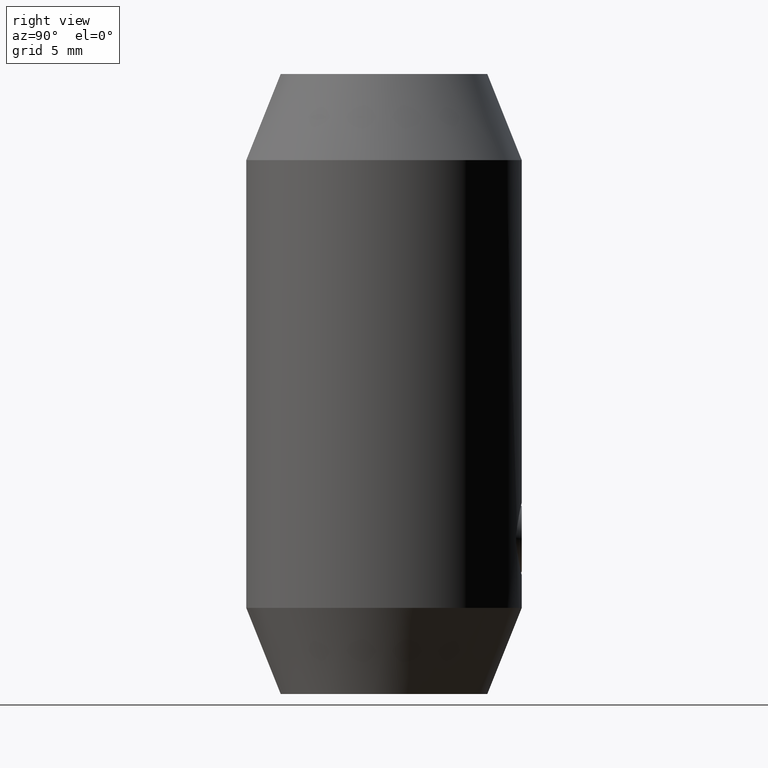
[diagram: clean part render]
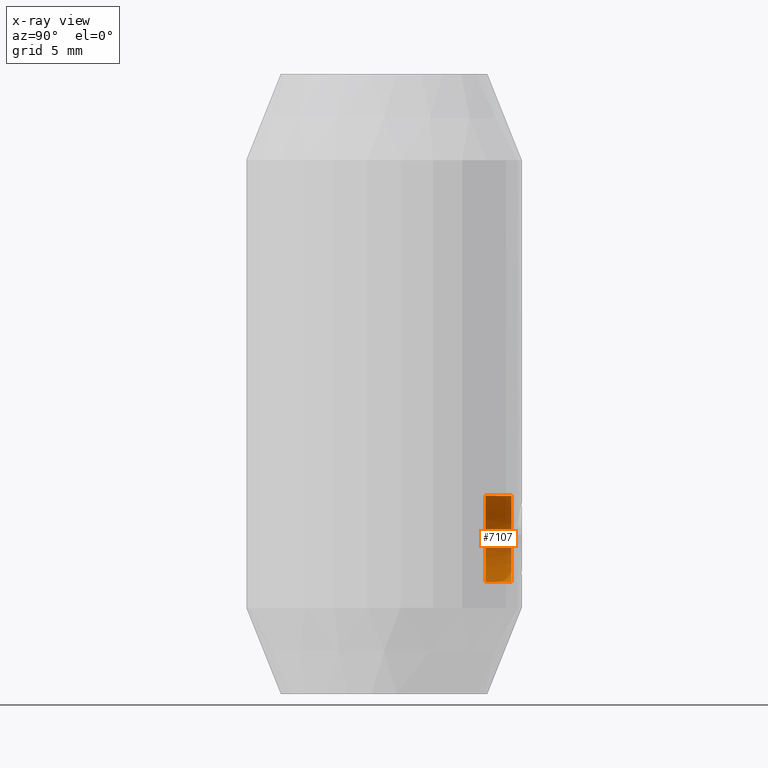
[diagram: x-ray — body ghosted, one internal face saturated and labeled with its STEP entity id]
A machine part, right view, then the same camera in x-ray: the body is ghosted and one INTERNAL B-rep face — a face not visible from any outside direction — is saturated and labeled: STEP entity #7107.
In plain terms, the highlighted cylindrical surface (partial cylindrical patch) has radius 2.5 mm, axis along (0, -1, -0).
Its self-contained STEP definition (entity closure, byte-faithful):
#1236 = CARTESIAN_POINT ( 'NONE',  ( 0.8999999999999893641, 2.500000000000000000, 0.000000000000000000 ) ) ;
#1460 = EDGE_CURVE ( 'NONE', #5481, #7007, #1616, .T. ) ;
#1512 = DIRECTION ( 'NONE',  ( -4.336808689942017736E-17, -1.000000000000000000, 0.000000000000000000 ) ) ;
#1599 = CARTESIAN_POINT ( 'NONE',  ( 3.000000000000000000, 0.000000000000000000, 0.000000000000000000 ) ) ;
#1616 = CIRCLE ( 'NONE', #12377, 2.500000000000000000 ) ;
#2495 = EDGE_LOOP ( 'NONE', ( #6902, #12696, #4310, #8204, #8031 ) ) ;
#2545 = CARTESIAN_POINT ( 'NONE',  ( 0.8999999999999892530, -4.538988261647288363E-17, 0.000000000000000000 ) ) ;
#3062 = CIRCLE ( 'NONE', #9588, 2.500000000000000000 ) ;
#3303 = VERTEX_POINT ( 'NONE', #13406 ) ;
#3568 = DIRECTION ( 'NONE',  ( -1.000000000000000000, -0.000000000000000000, -0.000000000000000000 ) ) ;
#3608 = CARTESIAN_POINT ( 'NONE',  ( 3.000000000000000000, 0.000000000000000000, 2.500000000000000000 ) ) ;
#3706 = EDGE_CURVE ( 'NONE', #5530, #13844, #3062, .T. ) ;
#3715 = DIRECTION ( 'NONE',  ( -1.000000000000000000, -0.000000000000000000, -0.000000000000000000 ) ) ;
#3719 = DIRECTION ( 'NONE',  ( -1.000000000000000000, 0.000000000000000000, 0.000000000000000000 ) ) ;
#4310 = ORIENTED_EDGE ( 'NONE', *, *, #11949, .F. ) ;
#4487 = EDGE_CURVE ( 'NONE', #5530, #5481, #9761, .T. ) ;
#4614 = DIRECTION ( 'NONE',  ( -1.000000000000000000, 5.043320290719269690E-17, -0.000000000000000000 ) ) ;
#4766 = DIRECTION ( 'NONE',  ( 0.000000000000000000, 0.000000000000000000, -1.000000000000000000 ) ) ;
#5153 = DIRECTION ( 'NONE',  ( -4.336808689942017736E-17, -1.000000000000000000, 0.000000000000000000 ) ) ;
#5206 = LINE ( 'NONE', #7835, #12900 ) ;
#5481 = VERTEX_POINT ( 'NONE', #13050 ) ;
#5530 = VERTEX_POINT ( 'NONE', #13103 ) ;
#5535 = CYLINDRICAL_SURFACE ( 'NONE', #6956, 2.500000000000000000 ) ;
#6031 = EDGE_CURVE ( 'NONE', #13844, #3303, #5206, .T. ) ;
#6701 = CIRCLE ( 'NONE', #10153, 2.500000000000000000 ) ;
#6902 = ORIENTED_EDGE ( 'NONE', *, *, #3706, .T. ) ;
#6956 = AXIS2_PLACEMENT_3D ( 'NONE', #1599, #3715, #12219 ) ;
#7007 = VERTEX_POINT ( 'NONE', #1236 ) ;
#7107 = ADVANCED_FACE ( 'NONE', ( #8387 ), #5535, .T. ) ;
#7835 = CARTESIAN_POINT ( 'NONE',  ( 3.000000000000000000, 3.061616997868383141E-16, -2.500000000000000000 ) ) ;
#7971 = CARTESIAN_POINT ( 'NONE',  ( 2.399999999999998135, 0.000000000000000000, 0.000000000000000000 ) ) ;
#8031 = ORIENTED_EDGE ( 'NONE', *, *, #4487, .F. ) ;
#8204 = ORIENTED_EDGE ( 'NONE', *, *, #1460, .F. ) ;
#8265 = DIRECTION ( 'NONE',  ( -1.000000000000000000, 5.043320290719269690E-17, -0.000000000000000000 ) ) ;
#8387 = FACE_OUTER_BOUND ( 'NONE', #2495, .T. ) ;
#9065 = CARTESIAN_POINT ( 'NONE',  ( 0.8999999999999892530, -4.538988261647288363E-17, 0.000000000000000000 ) ) ;
#9588 = AXIS2_PLACEMENT_3D ( 'NONE', #7971, #3719, #4766 ) ;
#9761 = LINE ( 'NONE', #3608, #10753 ) ;
#10153 = AXIS2_PLACEMENT_3D ( 'NONE', #9065, #8265, #5153 ) ;
#10753 = VECTOR ( 'NONE', #11092, 1000.000000000000000 ) ;
#10922 = CARTESIAN_POINT ( 'NONE',  ( 2.399999999999998135, 3.061616997868383141E-16, -2.500000000000000000 ) ) ;
#11092 = DIRECTION ( 'NONE',  ( -1.000000000000000000, -0.000000000000000000, -0.000000000000000000 ) ) ;
#11949 = EDGE_CURVE ( 'NONE', #7007, #3303, #6701, .T. ) ;
#12219 = DIRECTION ( 'NONE',  ( 0.000000000000000000, 0.000000000000000000, 1.000000000000000000 ) ) ;
#12377 = AXIS2_PLACEMENT_3D ( 'NONE', #2545, #4614, #1512 ) ;
#12696 = ORIENTED_EDGE ( 'NONE', *, *, #6031, .T. ) ;
#12900 = VECTOR ( 'NONE', #3568, 1000.000000000000000 ) ;
#13050 = CARTESIAN_POINT ( 'NONE',  ( 0.8999999999999892530, 0.000000000000000000, 2.500000000000000000 ) ) ;
#13103 = CARTESIAN_POINT ( 'NONE',  ( 2.399999999999998135, 0.000000000000000000, 2.500000000000000000 ) ) ;
#13406 = CARTESIAN_POINT ( 'NONE',  ( 0.8999999999999892530, 3.061616997868383141E-16, -2.500000000000000000 ) ) ;
#13844 = VERTEX_POINT ( 'NONE', #10922 ) ;